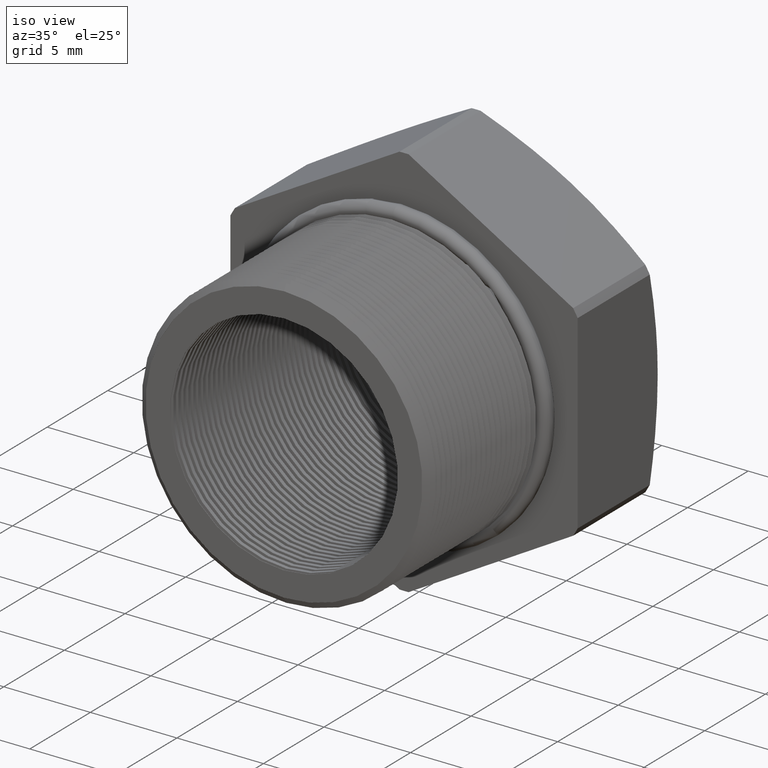
[diagram: clean part render]
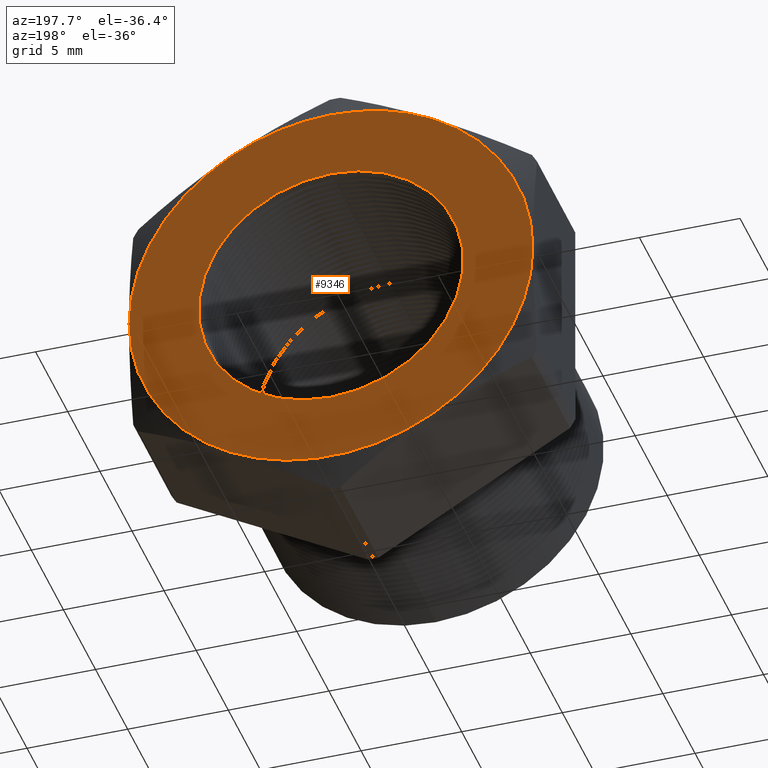
[diagram: tour spotlight — one face highlighted and labeled with its STEP entity id]
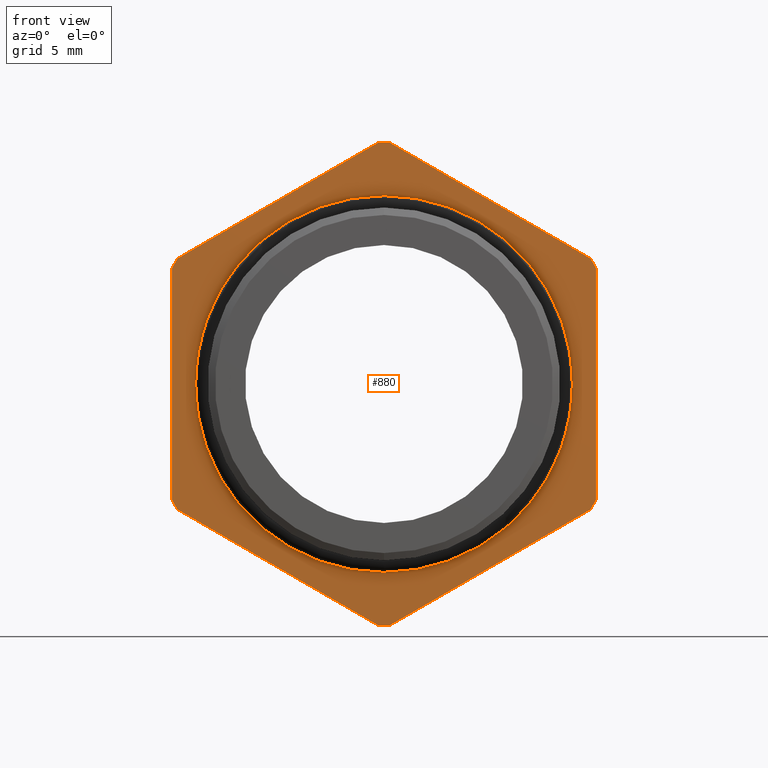
[diagram: tour spotlight — one face highlighted and labeled with its STEP entity id]
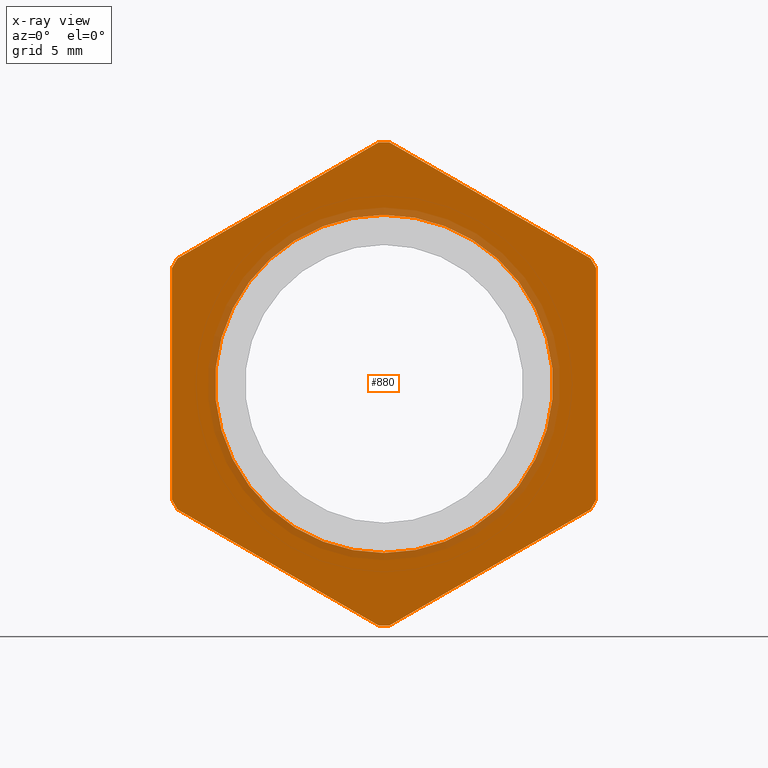
[diagram: x-ray of the same camera — body ghosted, this tour face saturated]
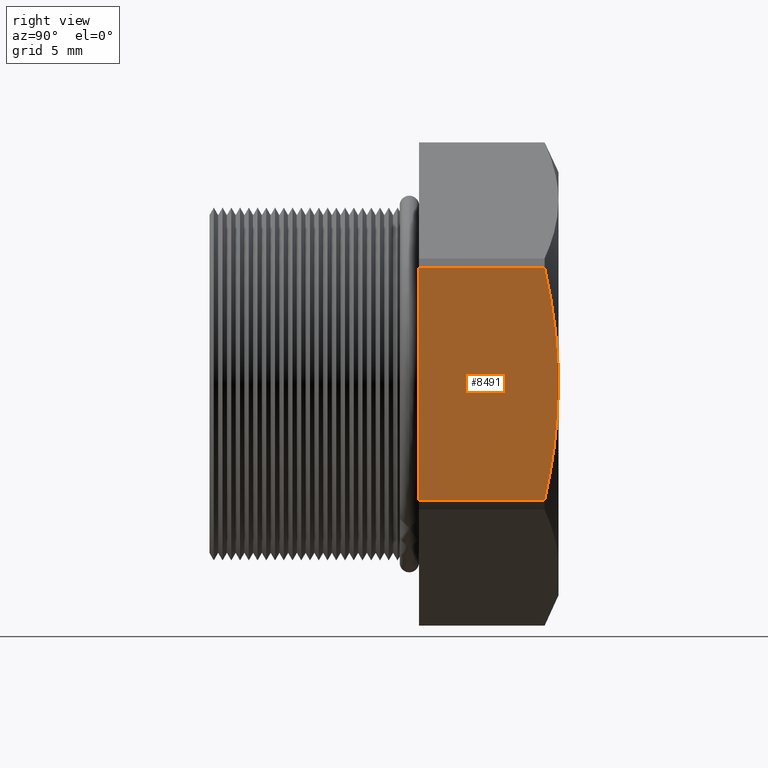
[diagram: tour spotlight — one face highlighted and labeled with its STEP entity id]
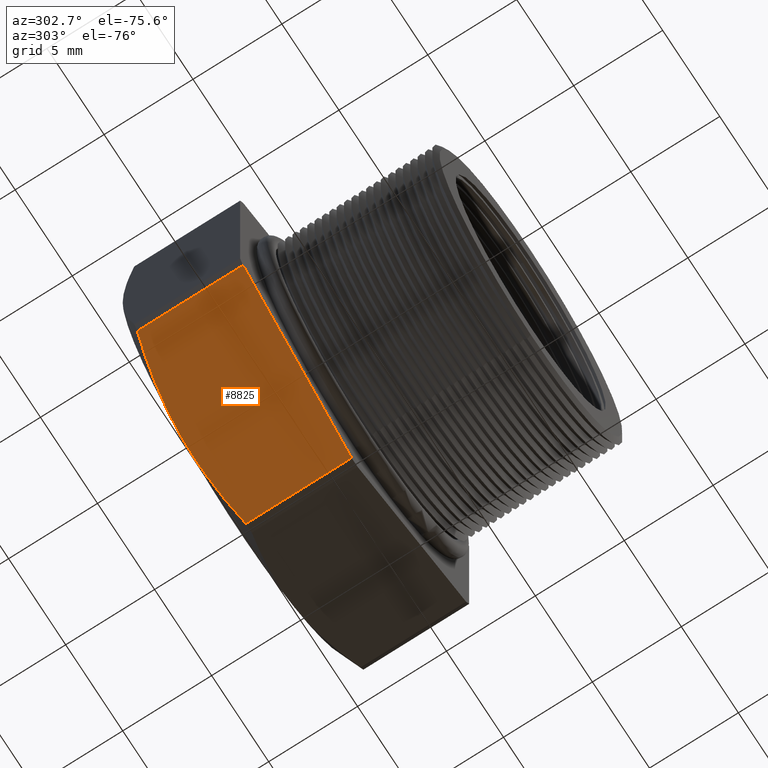
[diagram: tour spotlight — one face highlighted and labeled with its STEP entity id]
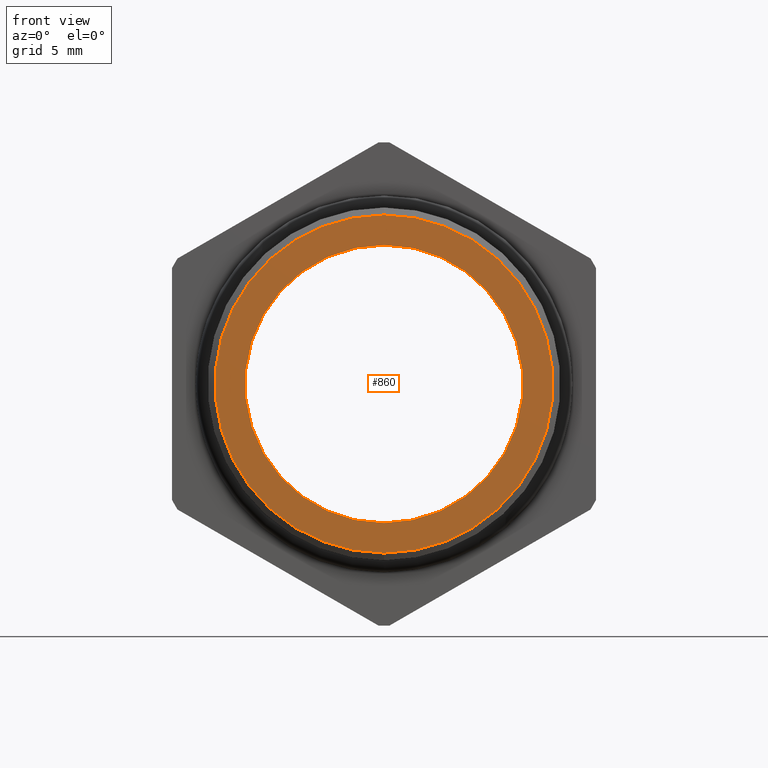
[diagram: tour spotlight — one face highlighted and labeled with its STEP entity id]
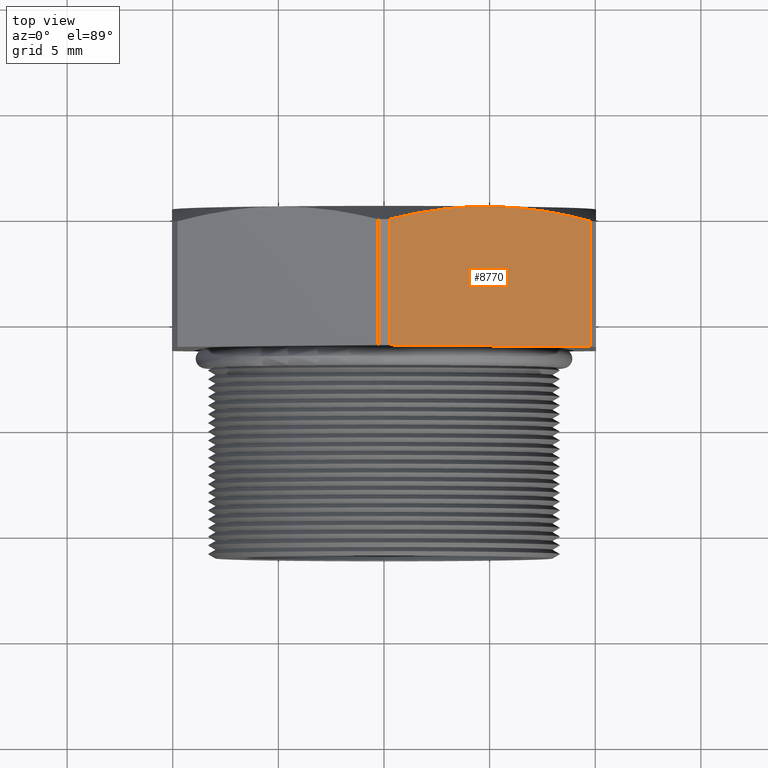
[diagram: tour spotlight — one face highlighted and labeled with its STEP entity id]
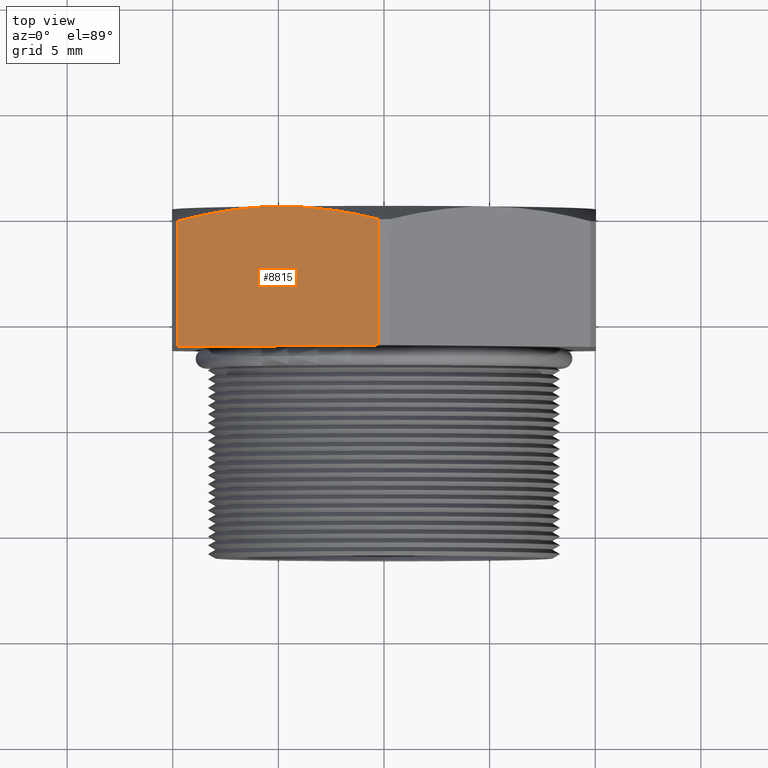
[diagram: tour spotlight — one face highlighted and labeled with its STEP entity id]
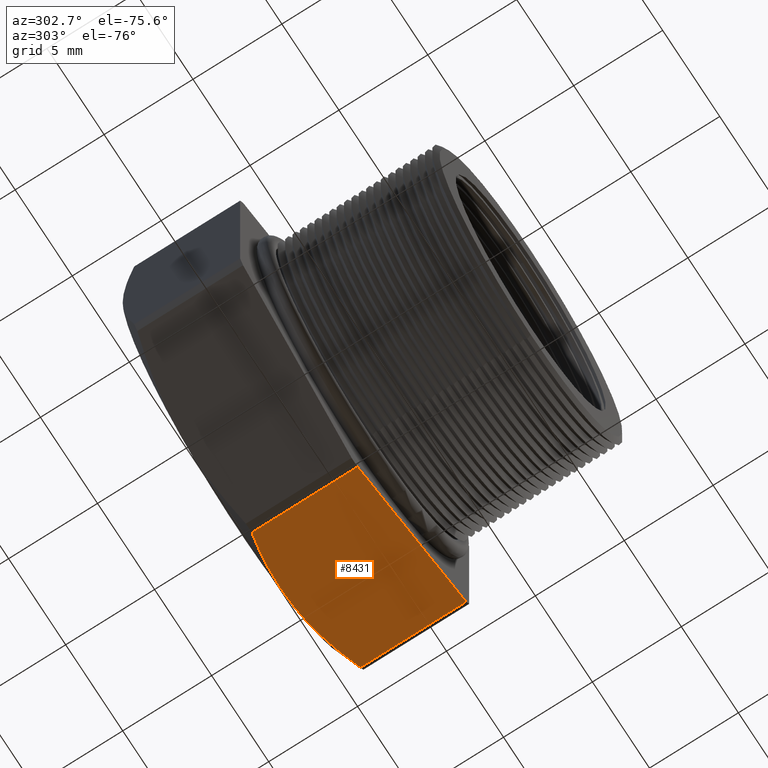
[diagram: tour spotlight — one face highlighted and labeled with its STEP entity id]
A machine part: a face-by-face anatomy tour. The part has 403 B-rep faces; the first image is the clean iso view, then the 8 largest visible faces are spotlighted one at a time (largest first), each with its STEP entity span.

Face 1 — auxiliary view, entity #9346. In plain terms, the highlighted planar face has unit normal (0, 1, 0).
Definition (entity closure, byte-faithful):
#5057 = CARTESIAN_POINT ( 'NONE',  ( 0.0000000000000000000, 0.4075548905829479200, -0.2589880461203001900 ) ) ;
#5091 = CARTESIAN_POINT ( 'NONE',  ( 3.171688816986526800E-017, 0.4075548905829479200, 0.2589880461203001900 ) ) ;
#5116 = DIRECTION ( 'NONE',  ( 0.0000000000000000000, 0.0000000000000000000, -1.000000000000000000 ) ) ;
#5117 = DIRECTION ( 'NONE',  ( -0.0000000000000000000, -1.000000000000000000, -0.0000000000000000000 ) ) ;
#5118 = CARTESIAN_POINT ( 'NONE',  ( 0.0000000000000000000, 0.4075548905829479200, 0.0000000000000000000 ) ) ;
#5119 = AXIS2_PLACEMENT_3D ( 'NONE', #5118, #5117, #5116 ) ;
#5120 = CIRCLE ( 'NONE', #5119, 0.2589880461203001900 ) ;
#5307 = CARTESIAN_POINT ( 'NONE',  ( -0.3949999999999999600, 0.4075548905829479200, 0.0000000000000000000 ) ) ;
#5329 = DIRECTION ( 'NONE',  ( 0.0000000000000000000, 0.0000000000000000000, 1.000000000000000000 ) ) ;
#5330 = DIRECTION ( 'NONE',  ( 0.0000000000000000000, 1.000000000000000000, 0.0000000000000000000 ) ) ;
#5331 = CARTESIAN_POINT ( 'NONE',  ( 0.0000000000000000000, 0.4075548905829479200, 0.0000000000000000000 ) ) ;
#5332 = AXIS2_PLACEMENT_3D ( 'NONE', #5331, #5330, #5329 ) ;
#5333 = CIRCLE ( 'NONE', #5332, 0.3949999999999999600 ) ;
#6760 = DIRECTION ( 'NONE',  ( 0.0000000000000000000, 0.0000000000000000000, -1.000000000000000000 ) ) ;
#6761 = DIRECTION ( 'NONE',  ( -0.0000000000000000000, -1.000000000000000000, -0.0000000000000000000 ) ) ;
#6762 = CARTESIAN_POINT ( 'NONE',  ( 0.0000000000000000000, 0.4075548905829479200, 0.0000000000000000000 ) ) ;
#6763 = AXIS2_PLACEMENT_3D ( 'NONE', #6762, #6761, #6760 ) ;
#6769 = CIRCLE ( 'NONE', #6763, 0.2589880461203001900 ) ;
#6805 = DIRECTION ( 'NONE',  ( 0.0000000000000000000, -0.0000000000000000000, 1.000000000000000000 ) ) ;
#6806 = DIRECTION ( 'NONE',  ( 0.0000000000000000000, 1.000000000000000000, 0.0000000000000000000 ) ) ;
#6807 = CARTESIAN_POINT ( 'NONE',  ( 0.4502999999999999800, 0.4075548905829479200, 0.0000000000000000000 ) ) ;
#6808 = AXIS2_PLACEMENT_3D ( 'NONE', #6807, #6806, #6805 ) ;
#6809 = PLANE ( 'NONE',  #6808 ) ;
#6810 = FACE_OUTER_BOUND ( 'NONE', #9310, .T. ) ;
#6811 = FACE_BOUND ( 'NONE', #9334, .T. ) ;
#6822 = CARTESIAN_POINT ( 'NONE',  ( 0.0000000000000000000, 0.4075548905829479200, 0.0000000000000000000 ) ) ;
#6823 = AXIS2_PLACEMENT_3D ( 'NONE', #6822, #6887, #6886 ) ;
#6824 = CIRCLE ( 'NONE', #6823, 0.3949999999999999600 ) ;
#6825 = CARTESIAN_POINT ( 'NONE',  ( -0.1975000000000000900, 0.4075548905829479200, -0.3420800344948533000 ) ) ;
#6830 = DIRECTION ( 'NONE',  ( 0.0000000000000000000, 0.0000000000000000000, 1.000000000000000000 ) ) ;
#6831 = DIRECTION ( 'NONE',  ( 0.0000000000000000000, 1.000000000000000000, 0.0000000000000000000 ) ) ;
#6832 = CARTESIAN_POINT ( 'NONE',  ( 0.0000000000000000000, 0.4075548905829479200, 0.0000000000000000000 ) ) ;
#6833 = AXIS2_PLACEMENT_3D ( 'NONE', #6832, #6831, #6830 ) ;
#6834 = CIRCLE ( 'NONE', #6833, 0.3949999999999999600 ) ;
#6860 = CARTESIAN_POINT ( 'NONE',  ( -0.1975000000000000100, 0.4075548905829479200, 0.3420800344948533600 ) ) ;
#6862 = DIRECTION ( 'NONE',  ( 0.0000000000000000000, 0.0000000000000000000, 1.000000000000000000 ) ) ;
#6863 = DIRECTION ( 'NONE',  ( 0.0000000000000000000, 1.000000000000000000, 0.0000000000000000000 ) ) ;
#6864 = CARTESIAN_POINT ( 'NONE',  ( 0.0000000000000000000, 0.4075548905829479200, 0.0000000000000000000 ) ) ;
#6865 = AXIS2_PLACEMENT_3D ( 'NONE', #6864, #6863, #6862 ) ;
#6866 = CIRCLE ( 'NONE', #6865, 0.3949999999999999600 ) ;
#6868 = CARTESIAN_POINT ( 'NONE',  ( 0.3949999999999999600, 0.4075548905829479200, 1.182924880895400300E-016 ) ) ;
#6869 = DIRECTION ( 'NONE',  ( 0.0000000000000000000, 0.0000000000000000000, 1.000000000000000000 ) ) ;
#6870 = DIRECTION ( 'NONE',  ( 0.0000000000000000000, 1.000000000000000000, 0.0000000000000000000 ) ) ;
#6871 = CARTESIAN_POINT ( 'NONE',  ( 0.0000000000000000000, 0.4075548905829479200, 0.0000000000000000000 ) ) ;
#6872 = AXIS2_PLACEMENT_3D ( 'NONE', #6871, #6870, #6869 ) ;
#6873 = CIRCLE ( 'NONE', #6872, 0.3949999999999999600 ) ;
#6874 = CARTESIAN_POINT ( 'NONE',  ( 0.1975000000000000100, 0.4075548905829479200, -0.3420800344948534100 ) ) ;
#6886 = DIRECTION ( 'NONE',  ( 0.0000000000000000000, 0.0000000000000000000, 1.000000000000000000 ) ) ;
#6887 = DIRECTION ( 'NONE',  ( 0.0000000000000000000, 1.000000000000000000, 0.0000000000000000000 ) ) ;
#6907 = DIRECTION ( 'NONE',  ( 0.0000000000000000000, 0.0000000000000000000, 1.000000000000000000 ) ) ;
#6908 = DIRECTION ( 'NONE',  ( 0.0000000000000000000, 1.000000000000000000, 0.0000000000000000000 ) ) ;
#6909 = CARTESIAN_POINT ( 'NONE',  ( 0.0000000000000000000, 0.4075548905829479200, 0.0000000000000000000 ) ) ;
#6910 = AXIS2_PLACEMENT_3D ( 'NONE', #6909, #6908, #6907 ) ;
#6911 = CIRCLE ( 'NONE', #6910, 0.3949999999999999600 ) ;
#8078 = CARTESIAN_POINT ( 'NONE',  ( 0.0000000000000000000, 0.4075548905829479200, 0.3949999999999999600 ) ) ;
#8079 = CARTESIAN_POINT ( 'NONE',  ( 0.1975000000000001800, 0.4075548905829479700, 0.3420800344948533000 ) ) ;
#8254 = DIRECTION ( 'NONE',  ( 0.0000000000000000000, 0.0000000000000000000, 1.000000000000000000 ) ) ;
#8255 = DIRECTION ( 'NONE',  ( 0.0000000000000000000, 1.000000000000000000, 0.0000000000000000000 ) ) ;
#8256 = CARTESIAN_POINT ( 'NONE',  ( 0.0000000000000000000, 0.4075548905829479200, 0.0000000000000000000 ) ) ;
#8257 = AXIS2_PLACEMENT_3D ( 'NONE', #8256, #8255, #8254 ) ;
#8258 = CIRCLE ( 'NONE', #8257, 0.3949999999999999600 ) ;
#8447 = VERTEX_POINT ( 'NONE', #5057 ) ;
#8455 = VERTEX_POINT ( 'NONE', #5091 ) ;
#8474 = EDGE_CURVE ( 'NONE', #8455, #8447, #5120, .T. ) ;
#8586 = VERTEX_POINT ( 'NONE', #5307 ) ;
#8599 = ORIENTED_EDGE ( 'NONE', *, *, #8602, .T. ) ;
#8602 = EDGE_CURVE ( 'NONE', #8586, #9386, #5333, .T. ) ;
#9307 = ORIENTED_EDGE ( 'NONE', *, *, #9399, .T. ) ;
#9310 = EDGE_LOOP ( 'NONE', ( #9307, #9388, #9389, #9379, #9373, #9369, #8599 ) ) ;
#9334 = EDGE_LOOP ( 'NONE', ( #9336, #9337 ) ) ;
#9335 = EDGE_CURVE ( 'NONE', #8447, #8455, #6769, .T. ) ;
#9336 = ORIENTED_EDGE ( 'NONE', *, *, #9335, .T. ) ;
#9337 = ORIENTED_EDGE ( 'NONE', *, *, #8474, .T. ) ;
#9346 = ADVANCED_FACE ( 'NONE', ( #6811, #6810 ), #6809, .T. ) ;
#9367 = EDGE_CURVE ( 'NONE', #9370, #8586, #6834, .T. ) ;
#9369 = ORIENTED_EDGE ( 'NONE', *, *, #9367, .T. ) ;
#9370 = VERTEX_POINT ( 'NONE', #6825 ) ;
#9372 = EDGE_CURVE ( 'NONE', #9376, #9370, #6824, .T. ) ;
#9373 = ORIENTED_EDGE ( 'NONE', *, *, #9372, .T. ) ;
#9376 = VERTEX_POINT ( 'NONE', #6874 ) ;
#9377 = EDGE_CURVE ( 'NONE', #9378, #9376, #6873, .T. ) ;
#9378 = VERTEX_POINT ( 'NONE', #6868 ) ;
#9379 = ORIENTED_EDGE ( 'NONE', *, *, #9377, .T. ) ;
#9381 = EDGE_CURVE ( 'NONE', #10156, #9378, #6866, .T. ) ;
#9386 = VERTEX_POINT ( 'NONE', #6860 ) ;
#9388 = ORIENTED_EDGE ( 'NONE', *, *, #10219, .T. ) ;
#9389 = ORIENTED_EDGE ( 'NONE', *, *, #9381, .T. ) ;
#9399 = EDGE_CURVE ( 'NONE', #9386, #10157, #6911, .T. ) ;
#10156 = VERTEX_POINT ( 'NONE', #8079 ) ;
#10157 = VERTEX_POINT ( 'NONE', #8078 ) ;
#10219 = EDGE_CURVE ( 'NONE', #10157, #10156, #8258, .T. ) ;

Face 2 — front view, entity #880. An x-ray twin of the same camera follows (body ghosted, this face saturated) — the face is partly hidden behind the body. In plain terms, the highlighted planar face has unit normal (0, -1, -0).
Definition (entity closure, byte-faithful):
#801 = EDGE_LOOP ( 'NONE', ( #802, #803 ) ) ;
#802 = ORIENTED_EDGE ( 'NONE', *, *, #8539, .F. ) ;
#803 = ORIENTED_EDGE ( 'NONE', *, *, #812, .F. ) ;
#804 = EDGE_LOOP ( 'NONE', ( #805, #806, #807, #808, #809, #810, #868, #869, #870, #871, #872, #873, #874 ) ) ;
#805 = ORIENTED_EDGE ( 'NONE', *, *, #8621, .T. ) ;
#806 = ORIENTED_EDGE ( 'NONE', *, *, #3652, .T. ) ;
#807 = ORIENTED_EDGE ( 'NONE', *, *, #8645, .T. ) ;
#808 = ORIENTED_EDGE ( 'NONE', *, *, #8821, .T. ) ;
#809 = ORIENTED_EDGE ( 'NONE', *, *, #8769, .T. ) ;
#810 = ORIENTED_EDGE ( 'NONE', *, *, #8849, .T. ) ;
#812 = EDGE_CURVE ( 'NONE', #8532, #8537, #3450, .T. ) ;
#868 = ORIENTED_EDGE ( 'NONE', *, *, #8741, .T. ) ;
#869 = ORIENTED_EDGE ( 'NONE', *, *, #8828, .T. ) ;
#870 = ORIENTED_EDGE ( 'NONE', *, *, #8704, .T. ) ;
#871 = ORIENTED_EDGE ( 'NONE', *, *, #8442, .T. ) ;
#872 = ORIENTED_EDGE ( 'NONE', *, *, #9360, .T. ) ;
#873 = ORIENTED_EDGE ( 'NONE', *, *, #8652, .T. ) ;
#874 = ORIENTED_EDGE ( 'NONE', *, *, #7913, .T. ) ;
#880 = ADVANCED_FACE ( 'NONE', ( #3535, #3534 ), #3533, .T. ) ;
#3446 = DIRECTION ( 'NONE',  ( 0.0000000000000000000, 0.0000000000000000000, -1.000000000000000000 ) ) ;
#3447 = DIRECTION ( 'NONE',  ( -0.0000000000000000000, -1.000000000000000000, -0.0000000000000000000 ) ) ;
#3448 = CARTESIAN_POINT ( 'NONE',  ( 0.0000000000000000000, 0.1475548905829479600, 0.0000000000000000000 ) ) ;
#3449 = AXIS2_PLACEMENT_3D ( 'NONE', #3448, #3447, #3446 ) ;
#3450 = CIRCLE ( 'NONE', #3449, 0.3150000000000000000 ) ;
#3528 = DIRECTION ( 'NONE',  ( 0.0000000000000000000, 0.0000000000000000000, -1.000000000000000000 ) ) ;
#3529 = DIRECTION ( 'NONE',  ( 0.0000000000000000000, -1.000000000000000000, -0.0000000000000000000 ) ) ;
#3530 = AXIS2_PLACEMENT_3D ( 'NONE', #3532, #3529, #3528 ) ;
#3532 = CARTESIAN_POINT ( 'NONE',  ( 0.3150000000000000000, 0.1475548905829479600, 0.0000000000000000000 ) ) ;
#3533 = PLANE ( 'NONE',  #3530 ) ;
#3534 = FACE_OUTER_BOUND ( 'NONE', #804, .T. ) ;
#3535 = FACE_BOUND ( 'NONE', #801, .T. ) ;
#3652 = EDGE_CURVE ( 'NONE', #8588, #8657, #4882, .T. ) ;
#4879 = DIRECTION ( 'NONE',  ( -2.994746533912406200E-016, 0.0000000000000000000, 1.000000000000000000 ) ) ;
#4880 = VECTOR ( 'NONE', #4879, 39.37007874015748100 ) ;
#4881 = CARTESIAN_POINT ( 'NONE',  ( 0.3949999999999999600, 0.1475548905829479600, 2.395797227129924000E-017 ) ) ;
#4882 = LINE ( 'NONE', #4881, #4880 ) ;
#4995 = DIRECTION ( 'NONE',  ( 0.8660254037844386000, 0.0000000000000000000, 0.4999999999999998300 ) ) ;
#4996 = VECTOR ( 'NONE', #4995, 39.37007874015748900 ) ;
#4997 = CARTESIAN_POINT ( 'NONE',  ( 0.4337499999999999700, 0.1475548905829479600, -0.2056810333988042500 ) ) ;
#4998 = LINE ( 'NONE', #4997, #4996 ) ;
#5063 = DIRECTION ( 'NONE',  ( 0.8660254037844386000, 0.0000000000000000000, -0.5000000000000002200 ) ) ;
#5064 = VECTOR ( 'NONE', #5063, 39.37007874015747400 ) ;
#5065 = CARTESIAN_POINT ( 'NONE',  ( 0.03874999999999989600, 0.1475548905829479600, -0.4784790355909022700 ) ) ;
#5066 = LINE ( 'NONE', #5065, #5064 ) ;
#5204 = CARTESIAN_POINT ( 'NONE',  ( 3.857637417314162700E-017, 0.1475548905829479600, 0.3150000000000000000 ) ) ;
#5250 = DIRECTION ( 'NONE',  ( 0.0000000000000000000, 0.0000000000000000000, -1.000000000000000000 ) ) ;
#5251 = DIRECTION ( 'NONE',  ( -0.0000000000000000000, -1.000000000000000000, -0.0000000000000000000 ) ) ;
#5252 = CARTESIAN_POINT ( 'NONE',  ( 0.0000000000000000000, 0.1475548905829479600, 0.0000000000000000000 ) ) ;
#5253 = AXIS2_PLACEMENT_3D ( 'NONE', #5252, #5251, #5250 ) ;
#5254 = CIRCLE ( 'NONE', #5253, 0.3150000000000000000 ) ;
#5255 = CARTESIAN_POINT ( 'NONE',  ( 0.0000000000000000000, 0.1475548905829479600, -0.3150000000000000000 ) ) ;
#5295 = CARTESIAN_POINT ( 'NONE',  ( 0.3847399997329629100, 0.1475548905829479600, -0.2339769702459617300 ) ) ;
#5302 = CARTESIAN_POINT ( 'NONE',  ( 0.3950000000000000200, 0.1475548905829479600, -0.2162061284977832000 ) ) ;
#5325 = CARTESIAN_POINT ( 'NONE',  ( -0.3847399997329628000, 0.1475548905829479600, 0.2339769702459618100 ) ) ;
#5328 = CARTESIAN_POINT ( 'NONE',  ( 0.01026000026703700000, 0.1475548905829479600, -0.4501830987437449600 ) ) ;
#5361 = DIRECTION ( 'NONE',  ( 0.0000000000000000000, 0.0000000000000000000, -1.000000000000000000 ) ) ;
#5362 = DIRECTION ( 'NONE',  ( -0.0000000000000000000, -1.000000000000000000, -0.0000000000000000000 ) ) ;
#5363 = CARTESIAN_POINT ( 'NONE',  ( 0.0000000000000000000, 0.1475548905829479600, 0.0000000000000000000 ) ) ;
#5364 = AXIS2_PLACEMENT_3D ( 'NONE', #5363, #5362, #5361 ) ;
#5365 = CIRCLE ( 'NONE', #5364, 0.4502999999999999800 ) ;
#5419 = CARTESIAN_POINT ( 'NONE',  ( -0.3949999999999999600, 0.1475548905829479600, -0.2162061284977833100 ) ) ;
#5420 = DIRECTION ( 'NONE',  ( 0.0000000000000000000, 0.0000000000000000000, -1.000000000000000000 ) ) ;
#5421 = DIRECTION ( 'NONE',  ( -0.0000000000000000000, -1.000000000000000000, -0.0000000000000000000 ) ) ;
#5422 = CARTESIAN_POINT ( 'NONE',  ( 0.0000000000000000000, 0.1475548905829479600, 0.0000000000000000000 ) ) ;
#5423 = AXIS2_PLACEMENT_3D ( 'NONE', #5422, #5421, #5420 ) ;
#5424 = CIRCLE ( 'NONE', #5423, 0.4502999999999999800 ) ;
#5458 = CARTESIAN_POINT ( 'NONE',  ( 0.3949999999999999100, 0.1475548905829479600, 0.2162061284977834200 ) ) ;
#5465 = DIRECTION ( 'NONE',  ( 0.0000000000000000000, 0.0000000000000000000, -1.000000000000000000 ) ) ;
#5466 = DIRECTION ( 'NONE',  ( -0.0000000000000000000, -1.000000000000000000, -0.0000000000000000000 ) ) ;
#5467 = CARTESIAN_POINT ( 'NONE',  ( 0.0000000000000000000, 0.1475548905829479600, 0.0000000000000000000 ) ) ;
#5468 = AXIS2_PLACEMENT_3D ( 'NONE', #5467, #5466, #5465 ) ;
#5469 = CIRCLE ( 'NONE', #5468, 0.4502999999999999800 ) ;
#5496 = CARTESIAN_POINT ( 'NONE',  ( -0.3847399997329630200, 0.1475548905829479600, -0.2339769702459614800 ) ) ;
#5513 = DIRECTION ( 'NONE',  ( 0.0000000000000000000, 0.0000000000000000000, -1.000000000000000000 ) ) ;
#5514 = DIRECTION ( 'NONE',  ( -0.0000000000000000000, -1.000000000000000000, -0.0000000000000000000 ) ) ;
#5515 = CARTESIAN_POINT ( 'NONE',  ( 0.0000000000000000000, 0.1475548905829479600, 0.0000000000000000000 ) ) ;
#5516 = AXIS2_PLACEMENT_3D ( 'NONE', #5515, #5514, #5513 ) ;
#5517 = CIRCLE ( 'NONE', #5516, 0.4502999999999999800 ) ;
#5568 = CARTESIAN_POINT ( 'NONE',  ( -0.3949999999999999600, 0.1475548905829479600, 0.2162061284977833100 ) ) ;
#5569 = DIRECTION ( 'NONE',  ( 0.0000000000000000000, 0.0000000000000000000, -1.000000000000000000 ) ) ;
#5570 = DIRECTION ( 'NONE',  ( -0.0000000000000000000, -1.000000000000000000, -0.0000000000000000000 ) ) ;
#5571 = CARTESIAN_POINT ( 'NONE',  ( 0.0000000000000000000, 0.1475548905829479600, 0.0000000000000000000 ) ) ;
#5572 = AXIS2_PLACEMENT_3D ( 'NONE', #5571, #5570, #5569 ) ;
#5573 = CIRCLE ( 'NONE', #5572, 0.4502999999999999800 ) ;
#5593 = CARTESIAN_POINT ( 'NONE',  ( 0.01026000026703743400, 0.1475548905829479600, 0.4501830987437449600 ) ) ;
#5682 = DIRECTION ( 'NONE',  ( 0.0000000000000000000, 0.0000000000000000000, -1.000000000000000000 ) ) ;
#5683 = DIRECTION ( 'NONE',  ( -0.0000000000000000000, -1.000000000000000000, -0.0000000000000000000 ) ) ;
#5684 = CARTESIAN_POINT ( 'NONE',  ( 0.0000000000000000000, 0.1475548905829479600, 0.0000000000000000000 ) ) ;
#5685 = AXIS2_PLACEMENT_3D ( 'NONE', #5684, #5683, #5682 ) ;
#5689 = CIRCLE ( 'NONE', #5685, 0.4502999999999999800 ) ;
#5718 = CARTESIAN_POINT ( 'NONE',  ( -0.01026000026703719400, 0.1475548905829479600, 0.4501830987437449000 ) ) ;
#5790 = DIRECTION ( 'NONE',  ( 0.0000000000000000000, 0.0000000000000000000, -1.000000000000000000 ) ) ;
#5791 = VECTOR ( 'NONE', #5790, 39.37007874015748100 ) ;
#5792 = CARTESIAN_POINT ( 'NONE',  ( -0.3949999999999999600, 0.1475548905829479600, 0.0000000000000000000 ) ) ;
#5793 = LINE ( 'NONE', #5792, #5791 ) ;
#5804 = DIRECTION ( 'NONE',  ( -0.8660254037844386000, 0.0000000000000000000, 0.5000000000000002200 ) ) ;
#5805 = VECTOR ( 'NONE', #5804, 39.37007874015747400 ) ;
#5806 = CARTESIAN_POINT ( 'NONE',  ( 0.4337500000000000200, 0.1475548905829479600, 0.2056810333988042200 ) ) ;
#5807 = LINE ( 'NONE', #5806, #5805 ) ;
#5863 = DIRECTION ( 'NONE',  ( -0.8660254037844386000, 0.0000000000000000000, -0.4999999999999998300 ) ) ;
#5864 = VECTOR ( 'NONE', #5863, 39.37007874015748900 ) ;
#5865 = CARTESIAN_POINT ( 'NONE',  ( 0.03875000000000002700, 0.1475548905829479600, 0.4784790355909024400 ) ) ;
#5866 = LINE ( 'NONE', #5865, #5864 ) ;
#6841 = CARTESIAN_POINT ( 'NONE',  ( 0.0000000000000000000, 0.1475548905829479600, -0.4502999999999999800 ) ) ;
#6843 = CARTESIAN_POINT ( 'NONE',  ( -0.01026000026703716000, 0.1475548905829479600, -0.4501830987437449600 ) ) ;
#6844 = DIRECTION ( 'NONE',  ( 0.0000000000000000000, 0.0000000000000000000, -1.000000000000000000 ) ) ;
#6845 = DIRECTION ( 'NONE',  ( -0.0000000000000000000, -1.000000000000000000, -0.0000000000000000000 ) ) ;
#6846 = CARTESIAN_POINT ( 'NONE',  ( 0.0000000000000000000, 0.1475548905829479600, 0.0000000000000000000 ) ) ;
#6847 = AXIS2_PLACEMENT_3D ( 'NONE', #6846, #6845, #6844 ) ;
#6848 = CIRCLE ( 'NONE', #6847, 0.4502999999999999800 ) ;
#6912 = CARTESIAN_POINT ( 'NONE',  ( 0.3847399997329628600, 0.1475548905829479600, 0.2339769702459617900 ) ) ;
#7913 = EDGE_CURVE ( 'NONE', #8605, #8593, #4998, .T. ) ;
#8442 = EDGE_CURVE ( 'NONE', #8677, #9361, #5066, .T. ) ;
#8532 = VERTEX_POINT ( 'NONE', #5204 ) ;
#8537 = VERTEX_POINT ( 'NONE', #5255 ) ;
#8539 = EDGE_CURVE ( 'NONE', #8537, #8532, #5254, .T. ) ;
#8588 = VERTEX_POINT ( 'NONE', #5302 ) ;
#8593 = VERTEX_POINT ( 'NONE', #5295 ) ;
#8605 = VERTEX_POINT ( 'NONE', #5328 ) ;
#8611 = VERTEX_POINT ( 'NONE', #5325 ) ;
#8621 = EDGE_CURVE ( 'NONE', #8593, #8588, #5365, .T. ) ;
#8645 = EDGE_CURVE ( 'NONE', #8657, #9397, #5424, .T. ) ;
#8646 = VERTEX_POINT ( 'NONE', #5419 ) ;
#8652 = EDGE_CURVE ( 'NONE', #9365, #8605, #5469, .T. ) ;
#8657 = VERTEX_POINT ( 'NONE', #5458 ) ;
#8677 = VERTEX_POINT ( 'NONE', #5496 ) ;
#8704 = EDGE_CURVE ( 'NONE', #8646, #8677, #5517, .T. ) ;
#8726 = VERTEX_POINT ( 'NONE', #5593 ) ;
#8741 = EDGE_CURVE ( 'NONE', #8611, #8742, #5573, .T. ) ;
#8742 = VERTEX_POINT ( 'NONE', #5568 ) ;
#8769 = EDGE_CURVE ( 'NONE', #8726, #8775, #5689, .T. ) ;
#8775 = VERTEX_POINT ( 'NONE', #5718 ) ;
#8821 = EDGE_CURVE ( 'NONE', #9397, #8726, #5807, .T. ) ;
#8828 = EDGE_CURVE ( 'NONE', #8742, #8646, #5793, .T. ) ;
#8849 = EDGE_CURVE ( 'NONE', #8775, #8611, #5866, .T. ) ;
#9360 = EDGE_CURVE ( 'NONE', #9361, #9365, #6848, .T. ) ;
#9361 = VERTEX_POINT ( 'NONE', #6843 ) ;
#9365 = VERTEX_POINT ( 'NONE', #6841 ) ;
#9397 = VERTEX_POINT ( 'NONE', #6912 ) ;

Face 3 — right view, entity #8491. In plain terms, the highlighted planar face has unit normal (1, -0, 0).
Definition (entity closure, byte-faithful):
#3652 = EDGE_CURVE ( 'NONE', #8588, #8657, #4882, .T. ) ;
#4099 = ORIENTED_EDGE ( 'NONE', *, *, #3652, .F. ) ;
#4356 = ORIENTED_EDGE ( 'NONE', *, *, #8655, .F. ) ;
#4661 = EDGE_CURVE ( 'NONE', #9378, #8662, #4904, .T. ) ;
#4879 = DIRECTION ( 'NONE',  ( -2.994746533912406200E-016, 0.0000000000000000000, 1.000000000000000000 ) ) ;
#4880 = VECTOR ( 'NONE', #4879, 39.37007874015748100 ) ;
#4881 = CARTESIAN_POINT ( 'NONE',  ( 0.3949999999999999600, 0.1475548905829479600, 2.395797227129924000E-017 ) ) ;
#4882 = LINE ( 'NONE', #4881, #4880 ) ;
#4894 = CARTESIAN_POINT ( 'NONE',  ( 0.3949999999999999100, 0.3817680770869766300, 0.2162061284977834200 ) ) ;
#4895 = CARTESIAN_POINT ( 'NONE',  ( 0.3950000000000000200, 0.3857277810940236700, 0.1985203524229407800 ) ) ;
#4896 = CARTESIAN_POINT ( 'NONE',  ( 0.3949999999999999600, 0.3893425190301801900, 0.1807096371993064100 ) ) ;
#4897 = CARTESIAN_POINT ( 'NONE',  ( 0.3949999999999997400, 0.3957247617336610600, 0.1447813574706902400 ) ) ;
#4898 = CARTESIAN_POINT ( 'NONE',  ( 0.3949999999999999100, 0.3984941280352430300, 0.1266205618416595700 ) ) ;
#4899 = CARTESIAN_POINT ( 'NONE',  ( 0.3949999999999999100, 0.4052039048660166500, 0.07230252560180081000 ) ) ;
#4900 = CARTESIAN_POINT ( 'NONE',  ( 0.3949999999999999100, 0.4075548905829478600, 0.03612960384967655500 ) ) ;
#4901 = CARTESIAN_POINT ( 'NONE',  ( 0.3949999999999999600, 0.4075548905829479200, 1.182924880895400300E-016 ) ) ;
#4904 = B_SPLINE_CURVE_WITH_KNOTS ( 'NONE', 3,
 ( #4901, #4900, #4899, #4898, #4897, #4896, #4895, #4894 ),
 .UNSPECIFIED., .F., .F.,
 ( 4, 2, 2, 4 ),
 ( 0.01592323799025090500, 0.01869311476406807600, 0.02007805315097666000, 0.02146299153788524400 ),
 .UNSPECIFIED. ) ;
#5069 = CARTESIAN_POINT ( 'NONE',  ( 0.3949999999999999600, 0.4075548905829479200, 1.182924880895400300E-016 ) ) ;
#5070 = CARTESIAN_POINT ( 'NONE',  ( 0.3950000000000000200, 0.4075548905829479700, -0.03615556656781510100 ) ) ;
#5071 = CARTESIAN_POINT ( 'NONE',  ( 0.3949999999999999100, 0.4052015678598533400, -0.07226777217285926300 ) ) ;
#5072 = CARTESIAN_POINT ( 'NONE',  ( 0.3950000000000000200, 0.3963026295804095700, -0.1444149386210269400 ) ) ;
#5073 = CARTESIAN_POINT ( 'NONE',  ( 0.3949999999999999600, 0.3897436049692236100, -0.1805839203849901600 ) ) ;
#5074 = CARTESIAN_POINT ( 'NONE',  ( 0.3950000000000000200, 0.3817680770869802400, -0.2162061284977868600 ) ) ;
#5078 = B_SPLINE_CURVE_WITH_KNOTS ( 'NONE', 3,
 ( #5074, #5073, #5072, #5071, #5070, #5069 ),
 .UNSPECIFIED., .F., .F.,
 ( 4, 2, 4 ),
 ( 0.01037950357804595100, 0.01315137078414842900, 0.01592323799025090500 ),
 .UNSPECIFIED. ) ;
#5148 = DIRECTION ( 'NONE',  ( 2.994746533912406200E-016, 0.0000000000000000000, -1.000000000000000000 ) ) ;
#5149 = DIRECTION ( 'NONE',  ( 1.000000000000000000, -0.0000000000000000000, 2.994746533912406200E-016 ) ) ;
#5150 = AXIS2_PLACEMENT_3D ( 'NONE', #5151, #5149, #5148 ) ;
#5151 = CARTESIAN_POINT ( 'NONE',  ( 0.3950000000000000200, 0.4075548905829479700, -0.2280533563299023100 ) ) ;
#5152 = PLANE ( 'NONE',  #5150 ) ;
#5153 = FACE_OUTER_BOUND ( 'NONE', #8477, .T. ) ;
#5296 = CARTESIAN_POINT ( 'NONE',  ( 0.3950000000000000200, 0.3817680770869802400, -0.2162061284977868600 ) ) ;
#5302 = CARTESIAN_POINT ( 'NONE',  ( 0.3950000000000000200, 0.1475548905829479600, -0.2162061284977832000 ) ) ;
#5406 = DIRECTION ( 'NONE',  ( -0.0000000000000000000, -1.000000000000000000, -0.0000000000000000000 ) ) ;
#5407 = VECTOR ( 'NONE', #5406, 39.37007874015748100 ) ;
#5408 = CARTESIAN_POINT ( 'NONE',  ( 0.3950000000000000200, 0.0000000000000000000, -0.2162061284977832000 ) ) ;
#5409 = LINE ( 'NONE', #5408, #5407 ) ;
#5457 = CARTESIAN_POINT ( 'NONE',  ( 0.3949999999999999100, 0.3817680770869766300, 0.2162061284977834200 ) ) ;
#5458 = CARTESIAN_POINT ( 'NONE',  ( 0.3949999999999999100, 0.1475548905829479600, 0.2162061284977834200 ) ) ;
#5460 = DIRECTION ( 'NONE',  ( 0.0000000000000000000, 1.000000000000000000, 0.0000000000000000000 ) ) ;
#5461 = VECTOR ( 'NONE', #5460, 39.37007874015748100 ) ;
#5462 = CARTESIAN_POINT ( 'NONE',  ( 0.3949999999999999100, 0.0000000000000000000, 0.2162061284977834200 ) ) ;
#5463 = LINE ( 'NONE', #5462, #5461 ) ;
#6868 = CARTESIAN_POINT ( 'NONE',  ( 0.3949999999999999600, 0.4075548905829479200, 1.182924880895400300E-016 ) ) ;
#8463 = ORIENTED_EDGE ( 'NONE', *, *, #4661, .T. ) ;
#8464 = ORIENTED_EDGE ( 'NONE', *, *, #8465, .T. ) ;
#8465 = EDGE_CURVE ( 'NONE', #8592, #9378, #5078, .T. ) ;
#8476 = ORIENTED_EDGE ( 'NONE', *, *, #8628, .F. ) ;
#8477 = EDGE_LOOP ( 'NONE', ( #8476, #8464, #8463, #4356, #4099 ) ) ;
#8491 = ADVANCED_FACE ( 'NONE', ( #5153 ), #5152, .T. ) ;
#8588 = VERTEX_POINT ( 'NONE', #5302 ) ;
#8592 = VERTEX_POINT ( 'NONE', #5296 ) ;
#8628 = EDGE_CURVE ( 'NONE', #8592, #8588, #5409, .T. ) ;
#8655 = EDGE_CURVE ( 'NONE', #8657, #8662, #5463, .T. ) ;
#8657 = VERTEX_POINT ( 'NONE', #5458 ) ;
#8662 = VERTEX_POINT ( 'NONE', #5457 ) ;
#9378 = VERTEX_POINT ( 'NONE', #6868 ) ;

Face 4 — auxiliary view, entity #8825. In plain terms, the highlighted planar face has unit normal (-0.5, 0, -0.866).
Definition (entity closure, byte-faithful):
#5045 = CARTESIAN_POINT ( 'NONE',  ( -0.07225680565382704100, 0.3962764420413619800, -0.4143892264647846000 ) ) ;
#5046 = CARTESIAN_POINT ( 'NONE',  ( -0.1350411223813805000, 0.4052207272773966600, -0.3781406843012451400 ) ) ;
#5047 = CARTESIAN_POINT ( 'NONE',  ( -0.1663280206471309000, 0.4075548905829478600, -0.3600771851654055400 ) ) ;
#5048 = CARTESIAN_POINT ( 'NONE',  ( -0.1975000000000000900, 0.4075548905829479200, -0.3420800344948533000 ) ) ;
#5050 = B_SPLINE_CURVE_WITH_KNOTS ( 'NONE', 3,
 ( #5048, #5047, #5046, #5045, #5098, #5097 ),
 .UNSPECIFIED., .F., .F.,
 ( 4, 2, 4 ),
 ( 0.005520192186429575900, 0.008258536476824122200, 0.01099688076721866900 ),
 .UNSPECIFIED. ) ;
#5051 = CARTESIAN_POINT ( 'NONE',  ( -0.1975000000000000900, 0.4075548905829479200, -0.3420800344948533000 ) ) ;
#5052 = CARTESIAN_POINT ( 'NONE',  ( -0.2289182622552070900, 0.4075548905829479700, -0.3239406923243390300 ) ) ;
#5053 = CARTESIAN_POINT ( 'NONE',  ( -0.2602199223343859000, 0.4051865378565924200, -0.3058686704515429200 ) ) ;
#5054 = CARTESIAN_POINT ( 'NONE',  ( -0.3226184986981742700, 0.3962912005447679100, -0.2698428355908604200 ) ) ;
#5055 = CARTESIAN_POINT ( 'NONE',  ( -0.3537166105170324600, 0.3897884989263426000, -0.2518883323609534800 ) ) ;
#5056 = CARTESIAN_POINT ( 'NONE',  ( -0.3847399997329631900, 0.3817680770869766300, -0.2339769702459613400 ) ) ;
#5058 = B_SPLINE_CURVE_WITH_KNOTS ( 'NONE', 3,
 ( #5056, #5055, #5054, #5053, #5052, #5051 ),
 .UNSPECIFIED., .F., .F.,
 ( 4, 2, 4 ),
 ( 2.335025902589511500E-007, 0.002760212844509917500, 0.005520192186429575900 ),
 .UNSPECIFIED. ) ;
#5063 = DIRECTION ( 'NONE',  ( 0.8660254037844386000, 0.0000000000000000000, -0.5000000000000002200 ) ) ;
#5064 = VECTOR ( 'NONE', #5063, 39.37007874015747400 ) ;
#5065 = CARTESIAN_POINT ( 'NONE',  ( 0.03874999999999989600, 0.1475548905829479600, -0.4784790355909022700 ) ) ;
#5066 = LINE ( 'NONE', #5065, #5064 ) ;
#5097 = CARTESIAN_POINT ( 'NONE',  ( -0.01026000026703699200, 0.3817680770869766300, -0.4501830987437449000 ) ) ;
#5098 = CARTESIAN_POINT ( 'NONE',  ( -0.04113558834110785800, 0.3897502881590466700, -0.4323570696577919700 ) ) ;
#5496 = CARTESIAN_POINT ( 'NONE',  ( -0.3847399997329630200, 0.1475548905829479600, -0.2339769702459614800 ) ) ;
#5530 = CARTESIAN_POINT ( 'NONE',  ( -0.3847399997329631900, 0.3817680770869766300, -0.2339769702459613400 ) ) ;
#5559 = DIRECTION ( 'NONE',  ( -0.0000000000000000000, -1.000000000000000000, -0.0000000000000000000 ) ) ;
#5560 = VECTOR ( 'NONE', #5559, 39.37007874015748100 ) ;
#5561 = CARTESIAN_POINT ( 'NONE',  ( -0.3847399997329631900, 0.0000000000000000000, -0.2339769702459612600 ) ) ;
#5562 = LINE ( 'NONE', #5561, #5560 ) ;
#5796 = DIRECTION ( 'NONE',  ( -0.8660254037844386000, 0.0000000000000000000, 0.5000000000000001100 ) ) ;
#5797 = DIRECTION ( 'NONE',  ( -0.5000000000000001100, 0.0000000000000000000, -0.8660254037844386000 ) ) ;
#5798 = CARTESIAN_POINT ( 'NONE',  ( -0.3949999999999999600, 0.4075548905829479700, -0.2280533563299020300 ) ) ;
#5799 = AXIS2_PLACEMENT_3D ( 'NONE', #5798, #5797, #5796 ) ;
#5800 = PLANE ( 'NONE',  #5799 ) ;
#5801 = FACE_OUTER_BOUND ( 'NONE', #8433, .T. ) ;
#6818 = CARTESIAN_POINT ( 'NONE',  ( -0.01026000026703699200, 0.3817680770869766300, -0.4501830987437449000 ) ) ;
#6825 = CARTESIAN_POINT ( 'NONE',  ( -0.1975000000000000900, 0.4075548905829479200, -0.3420800344948533000 ) ) ;
#6843 = CARTESIAN_POINT ( 'NONE',  ( -0.01026000026703716000, 0.1475548905829479600, -0.4501830987437449600 ) ) ;
#6850 = DIRECTION ( 'NONE',  ( 0.0000000000000000000, 1.000000000000000000, 0.0000000000000000000 ) ) ;
#6851 = VECTOR ( 'NONE', #6850, 39.37007874015748100 ) ;
#6852 = CARTESIAN_POINT ( 'NONE',  ( -0.01026000026703678500, 0.0000000000000000000, -0.4501830987437449000 ) ) ;
#6853 = LINE ( 'NONE', #6852, #6851 ) ;
#8425 = ORIENTED_EDGE ( 'NONE', *, *, #8442, .F. ) ;
#8429 = ORIENTED_EDGE ( 'NONE', *, *, #9356, .F. ) ;
#8432 = ORIENTED_EDGE ( 'NONE', *, *, #8708, .F. ) ;
#8433 = EDGE_LOOP ( 'NONE', ( #8432, #8444, #8445, #8429, #8425 ) ) ;
#8442 = EDGE_CURVE ( 'NONE', #8677, #9361, #5066, .T. ) ;
#8444 = ORIENTED_EDGE ( 'NONE', *, *, #8446, .T. ) ;
#8445 = ORIENTED_EDGE ( 'NONE', *, *, #8450, .T. ) ;
#8446 = EDGE_CURVE ( 'NONE', #8699, #9370, #5058, .T. ) ;
#8450 = EDGE_CURVE ( 'NONE', #9370, #9341, #5050, .T. ) ;
#8677 = VERTEX_POINT ( 'NONE', #5496 ) ;
#8699 = VERTEX_POINT ( 'NONE', #5530 ) ;
#8708 = EDGE_CURVE ( 'NONE', #8699, #8677, #5562, .T. ) ;
#8825 = ADVANCED_FACE ( 'NONE', ( #5801 ), #5800, .T. ) ;
#9341 = VERTEX_POINT ( 'NONE', #6818 ) ;
#9356 = EDGE_CURVE ( 'NONE', #9361, #9341, #6853, .T. ) ;
#9361 = VERTEX_POINT ( 'NONE', #6843 ) ;
#9370 = VERTEX_POINT ( 'NONE', #6825 ) ;

Face 5 — front view, entity #860. In plain terms, the highlighted planar face has unit normal (0, -1, -0).
Definition (entity closure, byte-faithful):
#860 = ADVANCED_FACE ( 'NONE', ( #3501, #3500 ), #3499, .T. ) ;
#861 = EDGE_LOOP ( 'NONE', ( #862, #864 ) ) ;
#862 = ORIENTED_EDGE ( 'NONE', *, *, #863, .F. ) ;
#863 = EDGE_CURVE ( 'NONE', #9965, #2691, #3493, .T. ) ;
#864 = ORIENTED_EDGE ( 'NONE', *, *, #7515, .F. ) ;
#865 = EDGE_LOOP ( 'NONE', ( #866, #9896 ) ) ;
#866 = ORIENTED_EDGE ( 'NONE', *, *, #867, .F. ) ;
#867 = EDGE_CURVE ( 'NONE', #9608, #9612, #3489, .T. ) ;
#2691 = VERTEX_POINT ( 'NONE', #4791 ) ;
#3485 = DIRECTION ( 'NONE',  ( -0.0000000000000000000, -1.000000000000000000, -0.0000000000000000000 ) ) ;
#3486 = CARTESIAN_POINT ( 'NONE',  ( 0.0000000000000000000, -0.2424451094170520000, 0.0000000000000000000 ) ) ;
#3487 = AXIS2_PLACEMENT_3D ( 'NONE', #3486, #3485, #3547 ) ;
#3489 = CIRCLE ( 'NONE', #3487, 0.2589880461203001900 ) ;
#3490 = DIRECTION ( 'NONE',  ( 0.0000000000000000000, 0.0000000000000000000, -1.000000000000000000 ) ) ;
#3491 = DIRECTION ( 'NONE',  ( 0.0000000000000000000, 1.000000000000000000, 0.0000000000000000000 ) ) ;
#3492 = AXIS2_PLACEMENT_3D ( 'NONE', #3497, #3491, #3490 ) ;
#3493 = CIRCLE ( 'NONE', #3492, 0.3150000000000000000 ) ;
#3494 = DIRECTION ( 'NONE',  ( 0.0000000000000000000, 0.0000000000000000000, -1.000000000000000000 ) ) ;
#3495 = DIRECTION ( 'NONE',  ( 0.0000000000000000000, -1.000000000000000000, -0.0000000000000000000 ) ) ;
#3496 = AXIS2_PLACEMENT_3D ( 'NONE', #3498, #3495, #3494 ) ;
#3497 = CARTESIAN_POINT ( 'NONE',  ( 0.0000000000000000000, -0.2424451094170520200, 0.0000000000000000000 ) ) ;
#3498 = CARTESIAN_POINT ( 'NONE',  ( 0.2589880461203001900, -0.2424451094170520200, 0.0000000000000000000 ) ) ;
#3499 = PLANE ( 'NONE',  #3496 ) ;
#3500 = FACE_BOUND ( 'NONE', #865, .T. ) ;
#3501 = FACE_OUTER_BOUND ( 'NONE', #861, .T. ) ;
#3547 = DIRECTION ( 'NONE',  ( 0.0000000000000000000, 0.0000000000000000000, -1.000000000000000000 ) ) ;
#4791 = CARTESIAN_POINT ( 'NONE',  ( 3.857637417314162700E-017, -0.2424451094170520200, -0.3150000000000000000 ) ) ;
#4999 = DIRECTION ( 'NONE',  ( 0.0000000000000000000, 0.0000000000000000000, -1.000000000000000000 ) ) ;
#5000 = DIRECTION ( 'NONE',  ( 0.0000000000000000000, 1.000000000000000000, 0.0000000000000000000 ) ) ;
#5001 = CARTESIAN_POINT ( 'NONE',  ( 0.0000000000000000000, -0.2424451094170520200, 0.0000000000000000000 ) ) ;
#5002 = AXIS2_PLACEMENT_3D ( 'NONE', #5001, #5000, #4999 ) ;
#5007 = CIRCLE ( 'NONE', #5002, 0.3150000000000000000 ) ;
#7267 = CARTESIAN_POINT ( 'NONE',  ( 0.0000000000000000000, -0.2424451094170520000, -0.2589880461203001900 ) ) ;
#7324 = CARTESIAN_POINT ( 'NONE',  ( 3.171688816986526800E-017, -0.2424451094170520000, 0.2589880461203001900 ) ) ;
#7325 = DIRECTION ( 'NONE',  ( 0.0000000000000000000, 0.0000000000000000000, -1.000000000000000000 ) ) ;
#7326 = DIRECTION ( 'NONE',  ( -0.0000000000000000000, -1.000000000000000000, -0.0000000000000000000 ) ) ;
#7327 = CARTESIAN_POINT ( 'NONE',  ( 0.0000000000000000000, -0.2424451094170520000, 0.0000000000000000000 ) ) ;
#7328 = AXIS2_PLACEMENT_3D ( 'NONE', #7327, #7326, #7325 ) ;
#7329 = CIRCLE ( 'NONE', #7328, 0.2589880461203001900 ) ;
#7515 = EDGE_CURVE ( 'NONE', #2691, #9965, #5007, .T. ) ;
#7932 = CARTESIAN_POINT ( 'NONE',  ( 0.0000000000000000000, -0.2424451094170520200, 0.3150000000000000000 ) ) ;
#9608 = VERTEX_POINT ( 'NONE', #7267 ) ;
#9610 = EDGE_CURVE ( 'NONE', #9612, #9608, #7329, .T. ) ;
#9612 = VERTEX_POINT ( 'NONE', #7324 ) ;
#9896 = ORIENTED_EDGE ( 'NONE', *, *, #9610, .F. ) ;
#9965 = VERTEX_POINT ( 'NONE', #7932 ) ;

Face 6 — top view, entity #8770. In plain terms, the highlighted planar face has unit normal (0.5, -0, 0.866).
Definition (entity closure, byte-faithful):
#5593 = CARTESIAN_POINT ( 'NONE',  ( 0.01026000026703743400, 0.1475548905829479600, 0.4501830987437449600 ) ) ;
#5594 = DIRECTION ( 'NONE',  ( 0.0000000000000000000, 1.000000000000000000, 0.0000000000000000000 ) ) ;
#5595 = VECTOR ( 'NONE', #5594, 39.37007874015748100 ) ;
#5596 = CARTESIAN_POINT ( 'NONE',  ( 0.01026000026703705700, 0.0000000000000000000, 0.4501830987437449000 ) ) ;
#5602 = LINE ( 'NONE', #5596, #5595 ) ;
#5603 = B_SPLINE_CURVE_WITH_KNOTS ( 'NONE', 3,
 ( #5663, #5662, #5661, #5660, #5659, #5658 ),
 .UNSPECIFIED., .F., .F.,
 ( 4, 2, 4 ),
 ( 2.335025902633483100E-007, 0.002760212844509914900, 0.005520192186429569000 ),
 .UNSPECIFIED. ) ;
#5658 = CARTESIAN_POINT ( 'NONE',  ( 0.1975000000000001800, 0.4075548905829479700, 0.3420800344948533000 ) ) ;
#5659 = CARTESIAN_POINT ( 'NONE',  ( 0.2289182622552072300, 0.4075548905829479700, 0.3239406923243393600 ) ) ;
#5660 = CARTESIAN_POINT ( 'NONE',  ( 0.2602199223343859600, 0.4051865378565921400, 0.3058686704515431500 ) ) ;
#5661 = CARTESIAN_POINT ( 'NONE',  ( 0.3226184986981740500, 0.3962912005447678500, 0.2698428355908606400 ) ) ;
#5662 = CARTESIAN_POINT ( 'NONE',  ( 0.3537166105170322900, 0.3897884989263423700, 0.2518883323609538100 ) ) ;
#5663 = CARTESIAN_POINT ( 'NONE',  ( 0.3847399997329630200, 0.3817680770869766300, 0.2339769702459616700 ) ) ;
#5675 = DIRECTION ( 'NONE',  ( 0.8660254037844386000, 0.0000000000000000000, -0.5000000000000001100 ) ) ;
#5676 = DIRECTION ( 'NONE',  ( 0.5000000000000001100, -0.0000000000000000000, 0.8660254037844386000 ) ) ;
#5677 = AXIS2_PLACEMENT_3D ( 'NONE', #5679, #5676, #5675 ) ;
#5679 = CARTESIAN_POINT ( 'NONE',  ( 0.3949999999999999100, 0.4075548905829479700, 0.2280533563299023100 ) ) ;
#5680 = PLANE ( 'NONE',  #5677 ) ;
#5681 = FACE_OUTER_BOUND ( 'NONE', #8737, .T. ) ;
#5804 = DIRECTION ( 'NONE',  ( -0.8660254037844386000, 0.0000000000000000000, 0.5000000000000002200 ) ) ;
#5805 = VECTOR ( 'NONE', #5804, 39.37007874015747400 ) ;
#5806 = CARTESIAN_POINT ( 'NONE',  ( 0.4337500000000000200, 0.1475548905829479600, 0.2056810333988042200 ) ) ;
#5807 = LINE ( 'NONE', #5806, #5805 ) ;
#6896 = CARTESIAN_POINT ( 'NONE',  ( 0.3847399997329630200, 0.3817680770869766300, 0.2339769702459616700 ) ) ;
#6903 = DIRECTION ( 'NONE',  ( -0.0000000000000000000, -1.000000000000000000, -0.0000000000000000000 ) ) ;
#6904 = VECTOR ( 'NONE', #6903, 39.37007874015748100 ) ;
#6905 = CARTESIAN_POINT ( 'NONE',  ( 0.3847399997329630800, 0.0000000000000000000, 0.2339769702459615400 ) ) ;
#6906 = LINE ( 'NONE', #6905, #6904 ) ;
#6912 = CARTESIAN_POINT ( 'NONE',  ( 0.3847399997329628600, 0.1475548905829479600, 0.2339769702459617900 ) ) ;
#8079 = CARTESIAN_POINT ( 'NONE',  ( 0.1975000000000001800, 0.4075548905829479700, 0.3420800344948533000 ) ) ;
#8112 = CARTESIAN_POINT ( 'NONE',  ( 0.01026000026703712300, 0.3817680770869766300, 0.4501830987437449600 ) ) ;
#8113 = CARTESIAN_POINT ( 'NONE',  ( 0.04113558834110801800, 0.3897502881590466700, 0.4323570696577921400 ) ) ;
#8114 = CARTESIAN_POINT ( 'NONE',  ( 0.07225680565382722200, 0.3962764420413619800, 0.4143892264647847100 ) ) ;
#8115 = CARTESIAN_POINT ( 'NONE',  ( 0.1350411223813806300, 0.4052207272773963300, 0.3781406843012452000 ) ) ;
#8116 = CARTESIAN_POINT ( 'NONE',  ( 0.1663280206471310900, 0.4075548905829478600, 0.3600771851654057700 ) ) ;
#8117 = CARTESIAN_POINT ( 'NONE',  ( 0.1975000000000001800, 0.4075548905829479700, 0.3420800344948533000 ) ) ;
#8120 = B_SPLINE_CURVE_WITH_KNOTS ( 'NONE', 3,
 ( #8117, #8116, #8115, #8114, #8113, #8112 ),
 .UNSPECIFIED., .F., .F.,
 ( 4, 2, 4 ),
 ( 0.005520192186429569000, 0.008258536476824115300, 0.01099688076721866100 ),
 .UNSPECIFIED. ) ;
#8121 = CARTESIAN_POINT ( 'NONE',  ( 0.01026000026703712300, 0.3817680770869766300, 0.4501830987437449600 ) ) ;
#8724 = EDGE_CURVE ( 'NONE', #8726, #10174, #5602, .T. ) ;
#8726 = VERTEX_POINT ( 'NONE', #5593 ) ;
#8732 = ORIENTED_EDGE ( 'NONE', *, *, #8754, .T. ) ;
#8733 = ORIENTED_EDGE ( 'NONE', *, *, #9400, .F. ) ;
#8737 = EDGE_LOOP ( 'NONE', ( #8733, #8732, #8824, #8820, #8819 ) ) ;
#8754 = EDGE_CURVE ( 'NONE', #9405, #10156, #5603, .T. ) ;
#8770 = ADVANCED_FACE ( 'NONE', ( #5681 ), #5680, .T. ) ;
#8819 = ORIENTED_EDGE ( 'NONE', *, *, #8821, .F. ) ;
#8820 = ORIENTED_EDGE ( 'NONE', *, *, #8724, .F. ) ;
#8821 = EDGE_CURVE ( 'NONE', #9397, #8726, #5807, .T. ) ;
#8824 = ORIENTED_EDGE ( 'NONE', *, *, #10175, .T. ) ;
#9397 = VERTEX_POINT ( 'NONE', #6912 ) ;
#9400 = EDGE_CURVE ( 'NONE', #9405, #9397, #6906, .T. ) ;
#9405 = VERTEX_POINT ( 'NONE', #6896 ) ;
#10156 = VERTEX_POINT ( 'NONE', #8079 ) ;
#10174 = VERTEX_POINT ( 'NONE', #8121 ) ;
#10175 = EDGE_CURVE ( 'NONE', #10156, #10174, #8120, .T. ) ;

Face 7 — top view, entity #8815. In plain terms, the highlighted planar face has unit normal (-0.5, 0, 0.866).
Definition (entity closure, byte-faithful):
#5325 = CARTESIAN_POINT ( 'NONE',  ( -0.3847399997329628000, 0.1475548905829479600, 0.2339769702459618100 ) ) ;
#5585 = CARTESIAN_POINT ( 'NONE',  ( -0.3847399997329628600, 0.3817680770869766300, 0.2339769702459618400 ) ) ;
#5667 = CARTESIAN_POINT ( 'NONE',  ( -0.2286719793528691200, 0.4075548905829478600, 0.3240828838243009500 ) ) ;
#5668 = CARTESIAN_POINT ( 'NONE',  ( -0.1975000000000000100, 0.4075548905829479200, 0.3420800344948533600 ) ) ;
#5669 = B_SPLINE_CURVE_WITH_KNOTS ( 'NONE', 3,
 ( #5668, #5667, #5723, #5722, #5721, #5720 ),
 .UNSPECIFIED., .F., .F.,
 ( 4, 2, 4 ),
 ( 0.005520192186429564600, 0.008258536476824108300, 0.01099688076721865000 ),
 .UNSPECIFIED. ) ;
#5670 = DIRECTION ( 'NONE',  ( -0.0000000000000000000, -1.000000000000000000, -0.0000000000000000000 ) ) ;
#5671 = VECTOR ( 'NONE', #5670, 39.37007874015748100 ) ;
#5672 = CARTESIAN_POINT ( 'NONE',  ( -0.01026000026703719400, 0.0000000000000000000, 0.4501830987437449000 ) ) ;
#5678 = LINE ( 'NONE', #5672, #5671 ) ;
#5710 = CARTESIAN_POINT ( 'NONE',  ( -0.01026000026703719400, 0.3817680770869766300, 0.4501830987437449000 ) ) ;
#5711 = CARTESIAN_POINT ( 'NONE',  ( -0.1975000000000000100, 0.4075548905829479200, 0.3420800344948533600 ) ) ;
#5712 = CARTESIAN_POINT ( 'NONE',  ( -0.1660817377447930700, 0.4075548905829479200, 0.3602193766653673000 ) ) ;
#5713 = CARTESIAN_POINT ( 'NONE',  ( -0.1347800776656142300, 0.4051865378565922500, 0.3782913985381633500 ) ) ;
#5714 = CARTESIAN_POINT ( 'NONE',  ( -0.07238150130182610700, 0.3962912005447678500, 0.4143172333988460700 ) ) ;
#5715 = CARTESIAN_POINT ( 'NONE',  ( -0.04128338948296790500, 0.3897884989263424300, 0.4322717366287527300 ) ) ;
#5716 = CARTESIAN_POINT ( 'NONE',  ( -0.01026000026703719400, 0.3817680770869766300, 0.4501830987437449000 ) ) ;
#5718 = CARTESIAN_POINT ( 'NONE',  ( -0.01026000026703719400, 0.1475548905829479600, 0.4501830987437449000 ) ) ;
#5719 = B_SPLINE_CURVE_WITH_KNOTS ( 'NONE', 3,
 ( #5716, #5715, #5714, #5713, #5712, #5711 ),
 .UNSPECIFIED., .F., .F.,
 ( 4, 2, 4 ),
 ( 2.335025902589980200E-007, 0.002760212844509911800, 0.005520192186429564600 ),
 .UNSPECIFIED. ) ;
#5720 = CARTESIAN_POINT ( 'NONE',  ( -0.3847399997329628600, 0.3817680770869766300, 0.2339769702459618400 ) ) ;
#5721 = CARTESIAN_POINT ( 'NONE',  ( -0.3538644116588921000, 0.3897502881590466700, 0.2518029993319146300 ) ) ;
#5722 = CARTESIAN_POINT ( 'NONE',  ( -0.3227431943461728800, 0.3962764420413620300, 0.2697708425249218400 ) ) ;
#5723 = CARTESIAN_POINT ( 'NONE',  ( -0.2599588776186196900, 0.4052207272773963300, 0.3060193846884615200 ) ) ;
#5760 = DIRECTION ( 'NONE',  ( 0.8660254037844386000, 0.0000000000000000000, 0.4999999999999998300 ) ) ;
#5761 = DIRECTION ( 'NONE',  ( -0.4999999999999998900, 0.0000000000000000000, 0.8660254037844387100 ) ) ;
#5762 = CARTESIAN_POINT ( 'NONE',  ( 4.505440556987010000E-017, 0.4075548905829479700, 0.4561067126598044600 ) ) ;
#5763 = AXIS2_PLACEMENT_3D ( 'NONE', #5762, #5761, #5760 ) ;
#5764 = PLANE ( 'NONE',  #5763 ) ;
#5766 = FACE_OUTER_BOUND ( 'NONE', #8807, .T. ) ;
#5863 = DIRECTION ( 'NONE',  ( -0.8660254037844386000, 0.0000000000000000000, -0.4999999999999998300 ) ) ;
#5864 = VECTOR ( 'NONE', #5863, 39.37007874015748900 ) ;
#5865 = CARTESIAN_POINT ( 'NONE',  ( 0.03875000000000002700, 0.1475548905829479600, 0.4784790355909024400 ) ) ;
#5866 = LINE ( 'NONE', #5865, #5864 ) ;
#6244 = DIRECTION ( 'NONE',  ( 0.0000000000000000000, 1.000000000000000000, 0.0000000000000000000 ) ) ;
#6245 = VECTOR ( 'NONE', #6244, 39.37007874015748100 ) ;
#6246 = CARTESIAN_POINT ( 'NONE',  ( -0.3847399997329628000, 0.0000000000000000000, 0.2339769702459618100 ) ) ;
#6247 = LINE ( 'NONE', #6246, #6245 ) ;
#6860 = CARTESIAN_POINT ( 'NONE',  ( -0.1975000000000000100, 0.4075548905829479200, 0.3420800344948533600 ) ) ;
#8494 = ORIENTED_EDGE ( 'NONE', *, *, #8849, .F. ) ;
#8611 = VERTEX_POINT ( 'NONE', #5325 ) ;
#8730 = VERTEX_POINT ( 'NONE', #5585 ) ;
#8752 = ORIENTED_EDGE ( 'NONE', *, *, #8774, .T. ) ;
#8771 = EDGE_CURVE ( 'NONE', #8780, #8775, #5678, .T. ) ;
#8772 = EDGE_CURVE ( 'NONE', #9386, #8730, #5669, .T. ) ;
#8774 = EDGE_CURVE ( 'NONE', #8780, #9386, #5719, .T. ) ;
#8775 = VERTEX_POINT ( 'NONE', #5718 ) ;
#8777 = ORIENTED_EDGE ( 'NONE', *, *, #8772, .T. ) ;
#8778 = ORIENTED_EDGE ( 'NONE', *, *, #9051, .F. ) ;
#8780 = VERTEX_POINT ( 'NONE', #5710 ) ;
#8806 = ORIENTED_EDGE ( 'NONE', *, *, #8771, .F. ) ;
#8807 = EDGE_LOOP ( 'NONE', ( #8806, #8752, #8777, #8778, #8494 ) ) ;
#8815 = ADVANCED_FACE ( 'NONE', ( #5766 ), #5764, .T. ) ;
#8849 = EDGE_CURVE ( 'NONE', #8775, #8611, #5866, .T. ) ;
#9051 = EDGE_CURVE ( 'NONE', #8611, #8730, #6247, .T. ) ;
#9386 = VERTEX_POINT ( 'NONE', #6860 ) ;

Face 8 — auxiliary view, entity #8431. In plain terms, the highlighted planar face has unit normal (0.5, 0, -0.866).
Definition (entity closure, byte-faithful):
#626 = ORIENTED_EDGE ( 'NONE', *, *, #7913, .F. ) ;
#761 = ORIENTED_EDGE ( 'NONE', *, *, #8641, .F. ) ;
#1226 = ORIENTED_EDGE ( 'NONE', *, *, #1280, .T. ) ;
#1280 = EDGE_CURVE ( 'NONE', #9376, #8589, #4061, .T. ) ;
#2872 = EDGE_CURVE ( 'NONE', #8680, #9376, #4847, .T. ) ;
#4061 = B_SPLINE_CURVE_WITH_KNOTS ( 'NONE', 3,
 ( #4122, #4121, #4120, #4119, #4118, #4117 ),
 .UNSPECIFIED., .F., .F.,
 ( 4, 2, 4 ),
 ( 0.005520192186429568100, 0.008258536476824113500, 0.01099688076721865700 ),
 .UNSPECIFIED. ) ;
#4117 = CARTESIAN_POINT ( 'NONE',  ( 0.3847399997329629100, 0.3817680770869766300, -0.2339769702459617900 ) ) ;
#4118 = CARTESIAN_POINT ( 'NONE',  ( 0.3538644116588920400, 0.3897502881590465000, -0.2518029993319145200 ) ) ;
#4119 = CARTESIAN_POINT ( 'NONE',  ( 0.3227431943461727700, 0.3962764420413619200, -0.2697708425249218900 ) ) ;
#4120 = CARTESIAN_POINT ( 'NONE',  ( 0.2599588776186194700, 0.4052207272773963300, -0.3060193846884615200 ) ) ;
#4121 = CARTESIAN_POINT ( 'NONE',  ( 0.2286719793528690600, 0.4075548905829479200, -0.3240828838243010600 ) ) ;
#4122 = CARTESIAN_POINT ( 'NONE',  ( 0.1975000000000000100, 0.4075548905829479200, -0.3420800344948534100 ) ) ;
#4840 = CARTESIAN_POINT ( 'NONE',  ( 0.1975000000000000100, 0.4075548905829479200, -0.3420800344948534100 ) ) ;
#4841 = CARTESIAN_POINT ( 'NONE',  ( 0.1660817377447930100, 0.4075548905829479200, -0.3602193766653673000 ) ) ;
#4842 = CARTESIAN_POINT ( 'NONE',  ( 0.1347800776656142000, 0.4051865378565922500, -0.3782913985381633500 ) ) ;
#4843 = CARTESIAN_POINT ( 'NONE',  ( 0.07238150130182612100, 0.3962912005447678500, -0.4143172333988460200 ) ) ;
#4844 = CARTESIAN_POINT ( 'NONE',  ( 0.04128338948296790500, 0.3897884989263424300, -0.4322717366287527300 ) ) ;
#4845 = CARTESIAN_POINT ( 'NONE',  ( 0.01026000026703719800, 0.3817680770869766900, -0.4501830987437449000 ) ) ;
#4847 = B_SPLINE_CURVE_WITH_KNOTS ( 'NONE', 3,
 ( #4845, #4844, #4843, #4842, #4841, #4840 ),
 .UNSPECIFIED., .F., .F.,
 ( 4, 2, 4 ),
 ( 2.335025902646719000E-007, 0.002760212844509916200, 0.005520192186429568100 ),
 .UNSPECIFIED. ) ;
#4995 = DIRECTION ( 'NONE',  ( 0.8660254037844386000, 0.0000000000000000000, 0.4999999999999998300 ) ) ;
#4996 = VECTOR ( 'NONE', #4995, 39.37007874015748900 ) ;
#4997 = CARTESIAN_POINT ( 'NONE',  ( 0.4337499999999999700, 0.1475548905829479600, -0.2056810333988042500 ) ) ;
#4998 = LINE ( 'NONE', #4997, #4996 ) ;
#5028 = DIRECTION ( 'NONE',  ( -0.8660254037844386000, 0.0000000000000000000, -0.4999999999999998300 ) ) ;
#5029 = DIRECTION ( 'NONE',  ( 0.4999999999999998900, 0.0000000000000000000, -0.8660254037844387100 ) ) ;
#5030 = AXIS2_PLACEMENT_3D ( 'NONE', #5031, #5029, #5028 ) ;
#5031 = CARTESIAN_POINT ( 'NONE',  ( 1.446412442642387900E-016, 0.4075548905829479700, -0.4561067126598043500 ) ) ;
#5032 = PLANE ( 'NONE',  #5030 ) ;
#5037 = FACE_OUTER_BOUND ( 'NONE', #8418, .T. ) ;
#5295 = CARTESIAN_POINT ( 'NONE',  ( 0.3847399997329629100, 0.1475548905829479600, -0.2339769702459617300 ) ) ;
#5301 = CARTESIAN_POINT ( 'NONE',  ( 0.3847399997329629100, 0.3817680770869766300, -0.2339769702459617900 ) ) ;
#5328 = CARTESIAN_POINT ( 'NONE',  ( 0.01026000026703700000, 0.1475548905829479600, -0.4501830987437449600 ) ) ;
#5435 = DIRECTION ( 'NONE',  ( 0.0000000000000000000, 1.000000000000000000, 0.0000000000000000000 ) ) ;
#5436 = VECTOR ( 'NONE', #5435, 39.37007874015748100 ) ;
#5437 = CARTESIAN_POINT ( 'NONE',  ( 0.3847399997329628000, 0.0000000000000000000, -0.2339769702459619500 ) ) ;
#5438 = LINE ( 'NONE', #5437, #5436 ) ;
#5490 = DIRECTION ( 'NONE',  ( -0.0000000000000000000, -1.000000000000000000, -0.0000000000000000000 ) ) ;
#5491 = VECTOR ( 'NONE', #5490, 39.37007874015748100 ) ;
#5492 = CARTESIAN_POINT ( 'NONE',  ( 0.01026000026703722700, 0.0000000000000000000, -0.4501830987437449000 ) ) ;
#5493 = LINE ( 'NONE', #5492, #5491 ) ;
#5494 = CARTESIAN_POINT ( 'NONE',  ( 0.01026000026703719800, 0.3817680770869766900, -0.4501830987437449000 ) ) ;
#6874 = CARTESIAN_POINT ( 'NONE',  ( 0.1975000000000000100, 0.4075548905829479200, -0.3420800344948534100 ) ) ;
#7913 = EDGE_CURVE ( 'NONE', #8605, #8593, #4998, .T. ) ;
#8418 = EDGE_LOOP ( 'NONE', ( #8495, #8496, #1226, #761, #626 ) ) ;
#8431 = ADVANCED_FACE ( 'NONE', ( #5037 ), #5032, .T. ) ;
#8495 = ORIENTED_EDGE ( 'NONE', *, *, #8681, .F. ) ;
#8496 = ORIENTED_EDGE ( 'NONE', *, *, #2872, .T. ) ;
#8589 = VERTEX_POINT ( 'NONE', #5301 ) ;
#8593 = VERTEX_POINT ( 'NONE', #5295 ) ;
#8605 = VERTEX_POINT ( 'NONE', #5328 ) ;
#8641 = EDGE_CURVE ( 'NONE', #8593, #8589, #5438, .T. ) ;
#8680 = VERTEX_POINT ( 'NONE', #5494 ) ;
#8681 = EDGE_CURVE ( 'NONE', #8680, #8605, #5493, .T. ) ;
#9376 = VERTEX_POINT ( 'NONE', #6874 ) ;